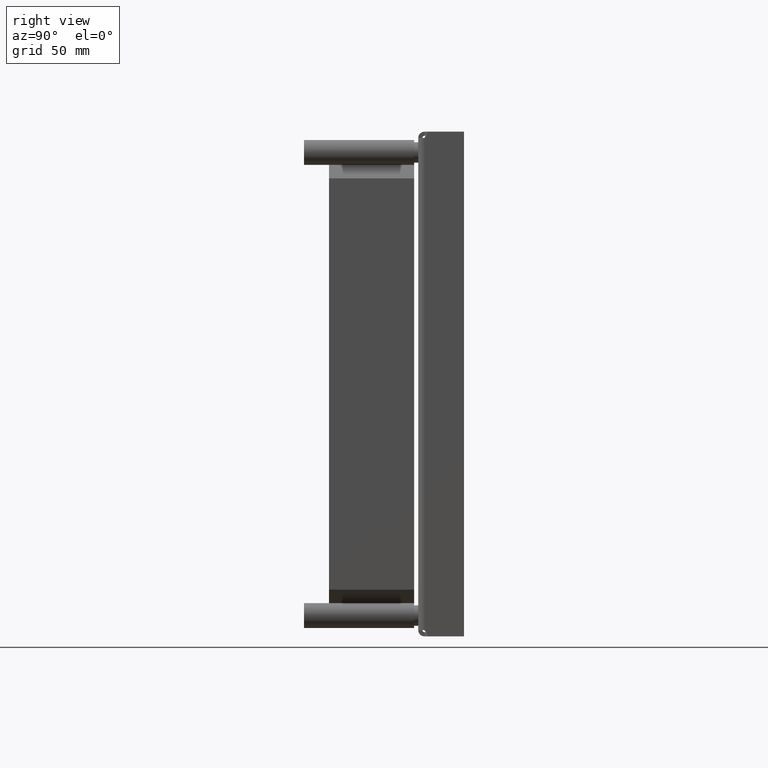
[diagram: clean part render]
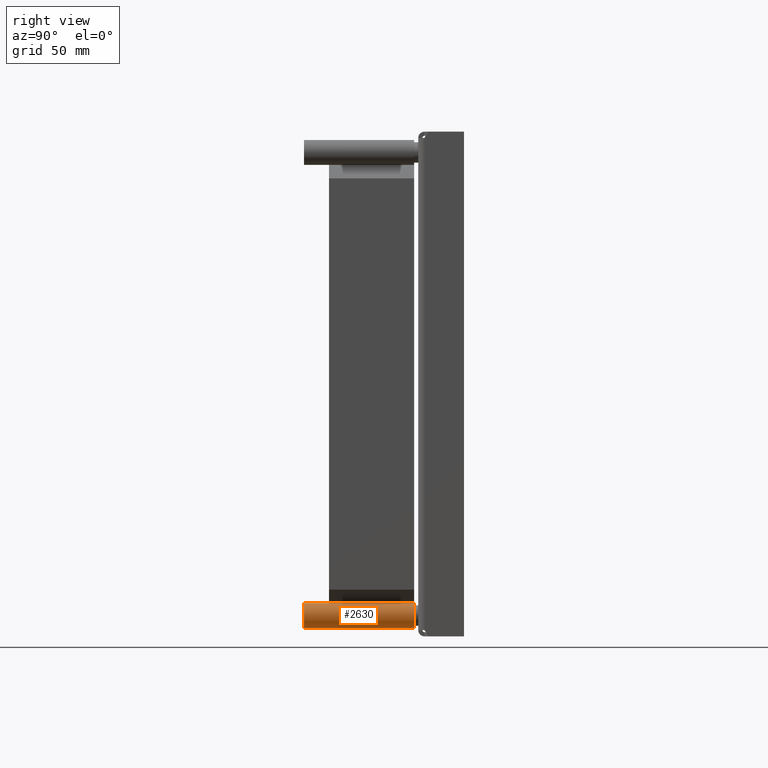
[diagram: same view with one face highlighted and labeled with its STEP entity id]
A machine part, right view. The second image highlights one B-rep face of the part: STEP entity #2630.
In plain terms, the highlighted cylindrical surface (edge-blend (fillet) strip) has radius 6 mm, axis along (0, -1, 0).
Its self-contained STEP definition (entity closure, byte-faithful):
#2384=CARTESIAN_POINT('',(0.E0,5.3E1,0.E0));
#2385=DIRECTION('',(0.E0,-1.E0,0.E0));
#2386=DIRECTION('',(0.E0,0.E0,-1.E0));
#2387=AXIS2_PLACEMENT_3D('',#2384,#2385,#2386);
#2416=DIRECTION('',(0.E0,1.E0,0.E0));
#2417=VECTOR('',#2416,5.3E1);
#2418=CARTESIAN_POINT('',(0.E0,-5.210646728907E-14,6.E0));
#2419=LINE('',#2418,#2417);
#2423=DIRECTION('',(0.E0,1.E0,0.E0));
#2424=VECTOR('',#2423,5.3E1);
#2425=CARTESIAN_POINT('',(0.E0,-5.210646728907E-14,-6.E0));
#2426=LINE('',#2425,#2424);
#2438=CARTESIAN_POINT('',(0.E0,-8.526512829121E-14,0.E0));
#2439=DIRECTION('',(0.E0,1.E0,0.E0));
#2440=DIRECTION('',(0.E0,0.E0,1.E0));
#2441=AXIS2_PLACEMENT_3D('',#2438,#2439,#2440);
#2542=CARTESIAN_POINT('',(0.E0,-8.526512829121E-14,-6.E0));
#2543=CARTESIAN_POINT('',(0.E0,-8.526512829121E-14,6.E0));
#2544=VERTEX_POINT('',#2542);
#2545=VERTEX_POINT('',#2543);
#2546=CARTESIAN_POINT('',(0.E0,5.3E1,6.E0));
#2547=VERTEX_POINT('',#2546);
#2548=CARTESIAN_POINT('',(0.E0,5.3E1,-6.E0));
#2549=VERTEX_POINT('',#2548);
#2616=CARTESIAN_POINT('',(0.E0,6.09E1,0.E0));
#2617=DIRECTION('',(0.E0,-1.E0,0.E0));
#2618=DIRECTION('',(0.E0,0.E0,1.E0));
#2619=AXIS2_PLACEMENT_3D('',#2616,#2617,#2618);
#2620=CYLINDRICAL_SURFACE('',#2619,6.E0);
#2622=ORIENTED_EDGE('',*,*,#2621,.T.);
#2623=ORIENTED_EDGE('',*,*,#2605,.F.);
#2625=ORIENTED_EDGE('',*,*,#2624,.F.);
#2627=ORIENTED_EDGE('',*,*,#2626,.F.);
#2628=EDGE_LOOP('',(#2622,#2623,#2625,#2627));
#2629=FACE_OUTER_BOUND('',#2628,.F.);
#2388=CIRCLE('',#2387,6.E0);
#2442=CIRCLE('',#2441,6.E0);
#2605=EDGE_CURVE('',#2549,#2547,#2388,.T.);
#2621=EDGE_CURVE('',#2545,#2547,#2419,.T.);
#2624=EDGE_CURVE('',#2544,#2549,#2426,.T.);
#2626=EDGE_CURVE('',#2545,#2544,#2442,.T.);
#2630=ADVANCED_FACE('',(#2629),#2620,.T.);